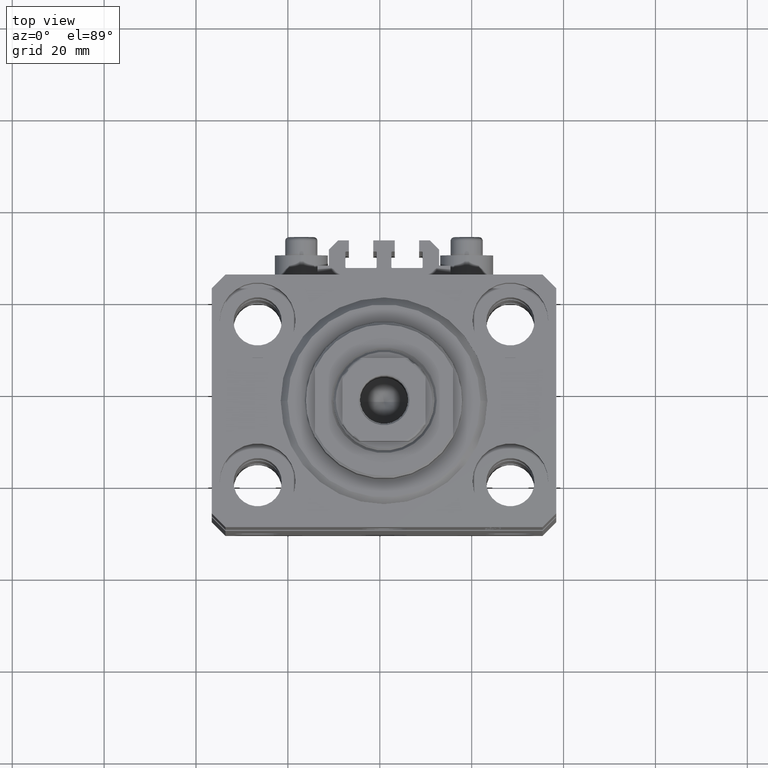
[diagram: clean part render]
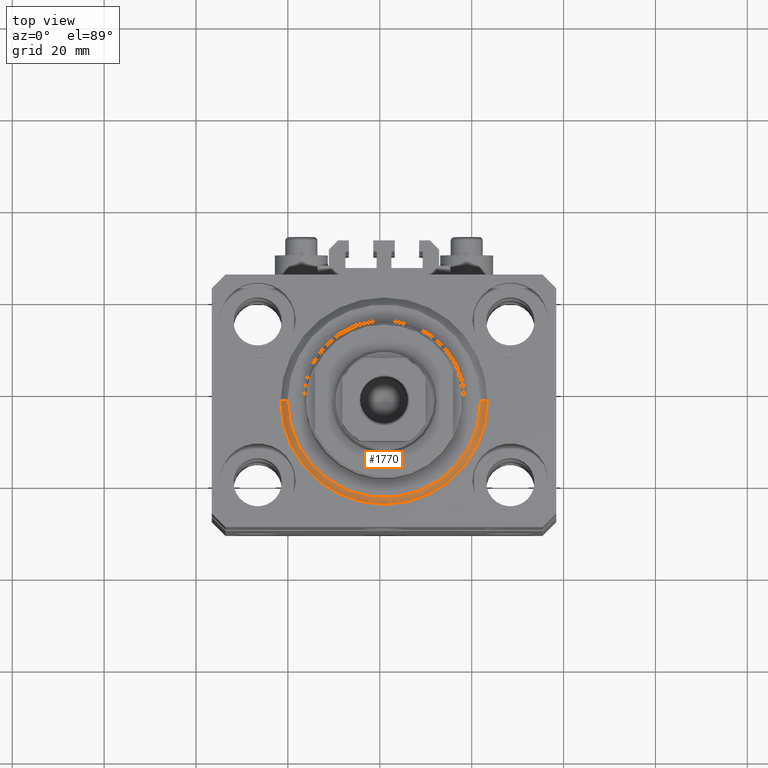
[diagram: same view with one face highlighted and labeled with its STEP entity id]
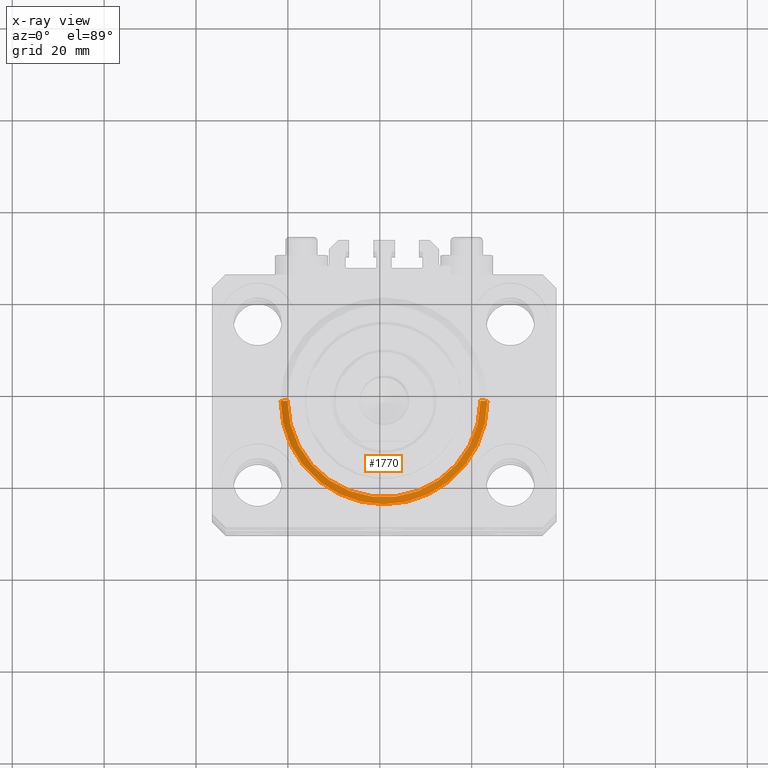
[diagram: x-ray of the same camera — body ghosted, the highlighted face saturated]
A machine part, top view. The second image highlights one B-rep face of the part: STEP entity #1770.
The next image is the same camera in x-ray: the body ghosted, the highlighted face saturated — about 0% of this face is hidden behind the body in this view.
In plain terms, the highlighted conical surface has half-angle 45 deg.
Its self-contained STEP definition (entity closure, byte-faithful):
#496 = DIRECTION ( 'NONE',  ( 1.000000000000000000, 0.000000000000000000, 0.000000000000000000 ) ) ;
#1663 = CIRCLE ( 'NONE', #28389, 20.99999999999998934 ) ;
#1770 = ADVANCED_FACE ( 'NONE', ( #23610 ), #26542, .T. ) ;
#2947 = ORIENTED_EDGE ( 'NONE', *, *, #13861, .F. ) ;
#3198 = LINE ( 'NONE', #17799, #4402 ) ;
#3433 = DIRECTION ( 'NONE',  ( 0.7071067811865500152, 0.000000000000000000, 0.7071067811865451302 ) ) ;
#4299 = CARTESIAN_POINT ( 'NONE',  ( -20.99999999999998934, 2.663606788145492628E-15, 0.000000000000000000 ) ) ;
#4402 = VECTOR ( 'NONE', #3433, 1000.000000000000114 ) ;
#5678 = ORIENTED_EDGE ( 'NONE', *, *, #21277, .F. ) ;
#6135 = EDGE_CURVE ( 'NONE', #10850, #23314, #3198, .T. ) ;
#8266 = CARTESIAN_POINT ( 'NONE',  ( 20.99999999999998934, 0.000000000000000000, 0.000000000000000000 ) ) ;
#9897 = EDGE_LOOP ( 'NONE', ( #5678, #2947, #41538, #29224 ) ) ;
#10850 = VERTEX_POINT ( 'NONE', #8266 ) ;
#13805 = CARTESIAN_POINT ( 'NONE',  ( -22.50000000000000355, 2.755455298081545172E-15, 1.500000000000001332 ) ) ;
#13861 = EDGE_CURVE ( 'NONE', #10850, #26664, #1663, .T. ) ;
#14514 = LINE ( 'NONE', #13805, #26332 ) ;
#15943 = DIRECTION ( 'NONE',  ( 1.000000000000000000, 0.000000000000000000, 0.000000000000000000 ) ) ;
#17183 = CARTESIAN_POINT ( 'NONE',  ( 0.000000000000000000, 0.000000000000000000, 1.500000000000001332 ) ) ;
#17414 = DIRECTION ( 'NONE',  ( -0.000000000000000000, -0.000000000000000000, 1.000000000000000000 ) ) ;
#17799 = CARTESIAN_POINT ( 'NONE',  ( 22.50000000000000355, 0.000000000000000000, 1.500000000000001332 ) ) ;
#21008 = DIRECTION ( 'NONE',  ( 1.000000000000000000, 0.000000000000000000, 0.000000000000000000 ) ) ;
#21277 = EDGE_CURVE ( 'NONE', #26664, #34165, #14514, .T. ) ;
#23314 = VERTEX_POINT ( 'NONE', #23736 ) ;
#23610 = FACE_OUTER_BOUND ( 'NONE', #9897, .T. ) ;
#23736 = CARTESIAN_POINT ( 'NONE',  ( 22.50000000000000355, 2.755455298081545172E-15, 1.500000000000001332 ) ) ;
#24296 = CIRCLE ( 'NONE', #41875, 22.50000000000000355 ) ;
#25212 = CARTESIAN_POINT ( 'NONE',  ( -22.50000000000000355, 0.000000000000000000, 1.500000000000001332 ) ) ;
#26332 = VECTOR ( 'NONE', #35582, 1000.000000000000114 ) ;
#26542 = CONICAL_SURFACE ( 'NONE', #36481, 22.50000000000000355, 0.7853981633974517207 ) ;
#26664 = VERTEX_POINT ( 'NONE', #4299 ) ;
#27430 = CARTESIAN_POINT ( 'NONE',  ( 0.000000000000000000, 0.000000000000000000, 1.500000000000001332 ) ) ;
#28389 = AXIS2_PLACEMENT_3D ( 'NONE', #36874, #33040, #496 ) ;
#29224 = ORIENTED_EDGE ( 'NONE', *, *, #42756, .F. ) ;
#33040 = DIRECTION ( 'NONE',  ( -0.000000000000000000, -0.000000000000000000, -1.000000000000000000 ) ) ;
#34165 = VERTEX_POINT ( 'NONE', #25212 ) ;
#35582 = DIRECTION ( 'NONE',  ( -0.7071067811865500152, 8.659560562354963673E-17, 0.7071067811865451302 ) ) ;
#36481 = AXIS2_PLACEMENT_3D ( 'NONE', #27430, #41800, #15943 ) ;
#36874 = CARTESIAN_POINT ( 'NONE',  ( 0.000000000000000000, 0.000000000000000000, 0.000000000000000000 ) ) ;
#41538 = ORIENTED_EDGE ( 'NONE', *, *, #6135, .T. ) ;
#41800 = DIRECTION ( 'NONE',  ( -0.000000000000000000, -0.000000000000000000, 1.000000000000000000 ) ) ;
#41875 = AXIS2_PLACEMENT_3D ( 'NONE', #17183, #17414, #21008 ) ;
#42756 = EDGE_CURVE ( 'NONE', #34165, #23314, #24296, .T. ) ;